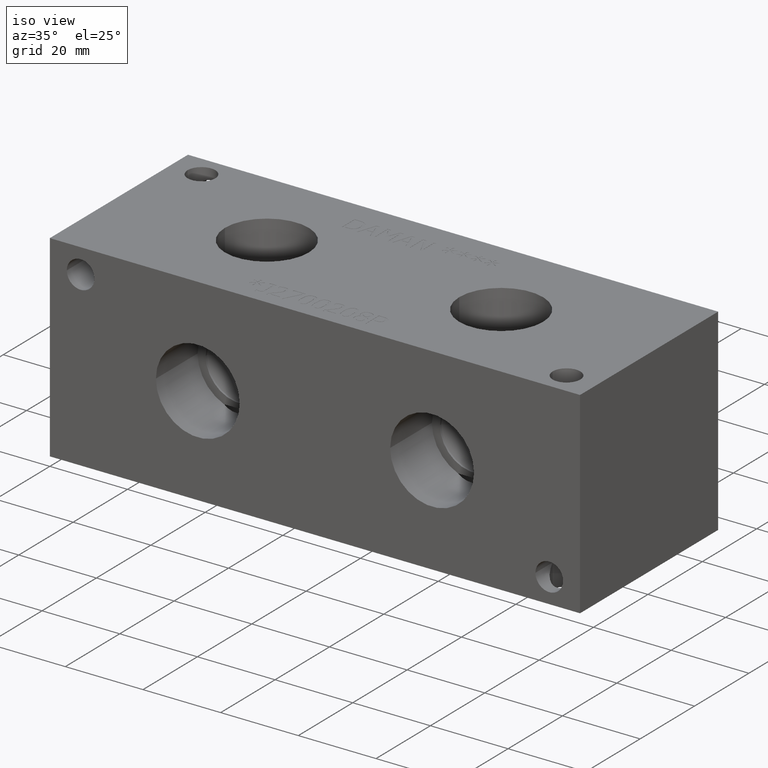
[diagram: clean part render]
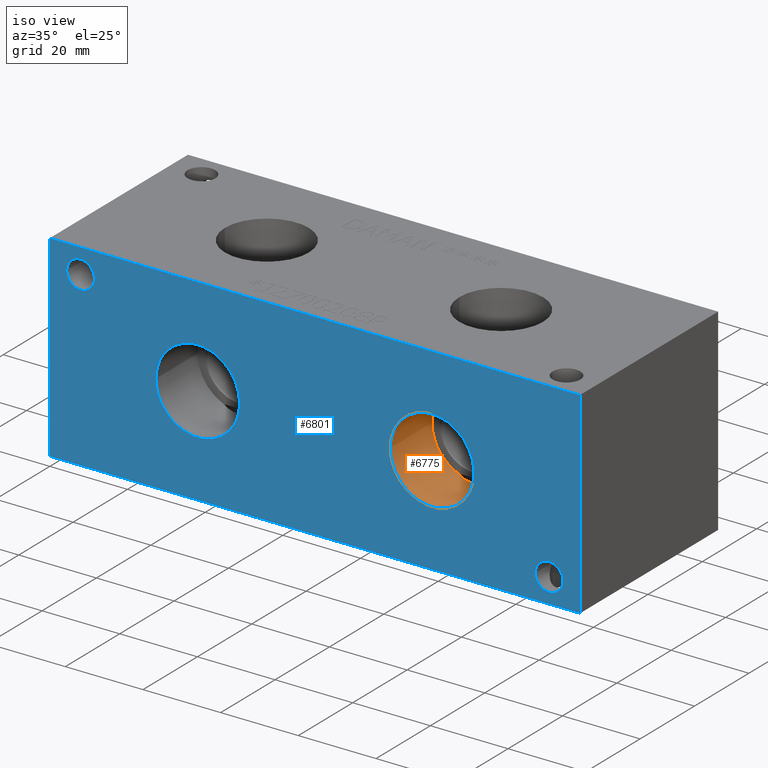
[diagram: same view with the hole feature highlighted: cylindrical wall and planar end face, labeled with their STEP entity ids]
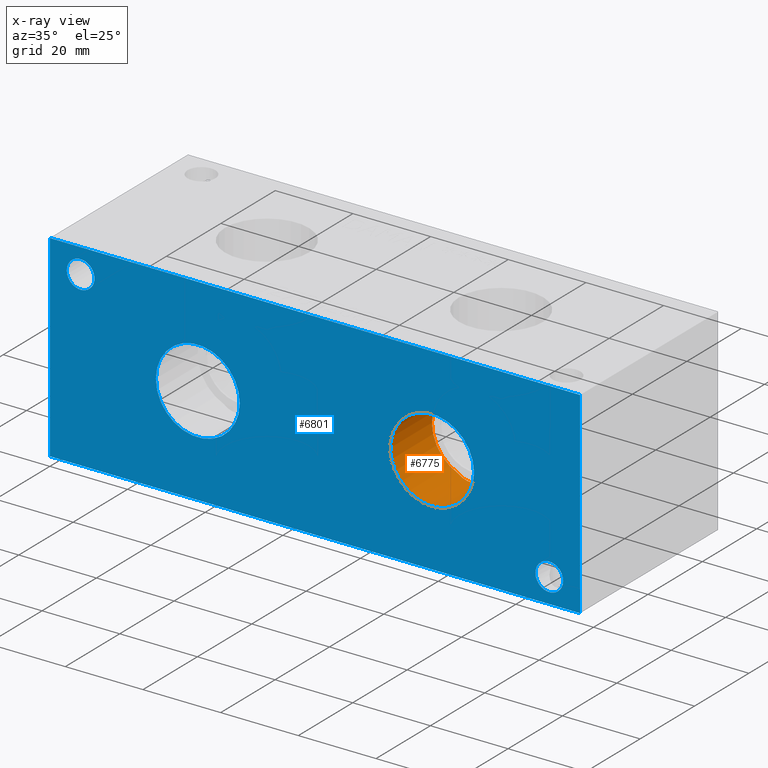
[diagram: x-ray of the same camera — body ghosted, the hole faces saturated]
A machine part, iso view. The highlighted faces form one hole feature of diameter 21.59 mm: the cylindrical wall (entity #6775, orange) and its adjacent planar end face (entity #6801, blue) — they share a circular edge in the B-rep.
The next image is the same camera in x-ray (body ghosted, the hole faces saturated) — the bore reads through the body.
Wall:
#21=ELLIPSE('',#7047,15.2664354058176,10.795);
#23=ELLIPSE('',#7066,15.2664354058176,10.795);
#37=CYLINDRICAL_SURFACE('',#7062,10.795);
#79=CIRCLE('',#7063,10.795);
#80=CIRCLE('',#7064,10.795);
#81=CIRCLE('',#7065,10.795);
#82=CIRCLE('',#7067,10.795);
#83=CIRCLE('',#7068,10.795);
#685=FACE_OUTER_BOUND('',#1060,.T.);
#1060=EDGE_LOOP('',(#5908,#5909,#5910,#5911,#5912,#5913,#5914,#5915,#5916));
#1745=LINE('',#11470,#2416);
#2416=VECTOR('',#8267,10.795);
#3215=VERTEX_POINT('',#11433);
#3216=VERTEX_POINT('',#11435);
#3226=VERTEX_POINT('',#11465);
#3227=VERTEX_POINT('',#11466);
#3228=VERTEX_POINT('',#11469);
#3229=VERTEX_POINT('',#11471);
#3230=VERTEX_POINT('',#11473);
#4118=EDGE_CURVE('',#3216,#3215,#21,.T.);
#4133=EDGE_CURVE('',#3226,#3227,#79,.T.);
#4134=EDGE_CURVE('',#3227,#3226,#80,.T.);
#4135=EDGE_CURVE('',#3227,#3228,#1745,.T.);
#4136=EDGE_CURVE('',#3229,#3228,#81,.T.);
#4137=EDGE_CURVE('',#3230,#3229,#23,.T.);
#4138=EDGE_CURVE('',#3216,#3230,#82,.T.);
#4139=EDGE_CURVE('',#3228,#3215,#83,.T.);
#5908=ORIENTED_EDGE('',*,*,#4133,.F.);
#5909=ORIENTED_EDGE('',*,*,#4134,.F.);
#5910=ORIENTED_EDGE('',*,*,#4135,.T.);
#5911=ORIENTED_EDGE('',*,*,#4136,.F.);
#5912=ORIENTED_EDGE('',*,*,#4137,.F.);
#5913=ORIENTED_EDGE('',*,*,#4138,.F.);
#5914=ORIENTED_EDGE('',*,*,#4118,.T.);
#5915=ORIENTED_EDGE('',*,*,#4139,.F.);
#5916=ORIENTED_EDGE('',*,*,#4135,.F.);
#6775=ADVANCED_FACE('',(#685),#37,.F.);
#7047=AXIS2_PLACEMENT_3D('',#11436,#8227,#8228);
#7062=AXIS2_PLACEMENT_3D('',#11464,#8261,#8262);
#7063=AXIS2_PLACEMENT_3D('',#11467,#8263,#8264);
#7064=AXIS2_PLACEMENT_3D('',#11468,#8265,#8266);
#7065=AXIS2_PLACEMENT_3D('',#11472,#8268,#8269);
#7066=AXIS2_PLACEMENT_3D('',#11474,#8270,#8271);
#7067=AXIS2_PLACEMENT_3D('',#11475,#8272,#8273);
#7068=AXIS2_PLACEMENT_3D('',#11476,#8274,#8275);
#8227=DIRECTION('center_axis',(0.,0.707106781186548,-0.707106781186548));
#8228=DIRECTION('ref_axis',(0.,-0.707106781186547,-0.707106781186547));
#8261=DIRECTION('center_axis',(0.,-1.,0.));
#8262=DIRECTION('ref_axis',(1.,0.,0.));
#8263=DIRECTION('center_axis',(0.,1.,0.));
#8264=DIRECTION('ref_axis',(1.,0.,0.));
#8265=DIRECTION('center_axis',(0.,1.,0.));
#8266=DIRECTION('ref_axis',(1.,0.,0.));
#8267=DIRECTION('',(0.,1.,0.));
#8268=DIRECTION('center_axis',(0.,-1.,0.));
#8269=DIRECTION('ref_axis',(1.,0.,0.));
#8270=DIRECTION('center_axis',(0.,-0.707106781186548,-0.707106781186547));
#8271=DIRECTION('ref_axis',(0.,-0.707106781186547,0.707106781186548));
#8272=DIRECTION('center_axis',(0.,-1.,0.));
#8273=DIRECTION('ref_axis',(1.,0.,0.));
#8274=DIRECTION('center_axis',(0.,-1.,0.));
#8275=DIRECTION('ref_axis',(1.,0.,0.));
#11433=CARTESIAN_POINT('',(94.441165666095,15.367,15.367));
#11435=CARTESIAN_POINT('',(102.408834333905,15.367,15.367));
#11436=CARTESIAN_POINT('Origin',(98.425,25.4,25.4));
#11464=CARTESIAN_POINT('Origin',(98.425,7.6835,25.4));
#11465=CARTESIAN_POINT('',(109.22,0.,25.4));
#11466=CARTESIAN_POINT('',(87.63,0.,25.4));
#11467=CARTESIAN_POINT('Origin',(98.425,0.,25.4));
#11468=CARTESIAN_POINT('Origin',(98.425,0.,25.4));
#11469=CARTESIAN_POINT('',(87.63,15.367,25.4));
#11470=CARTESIAN_POINT('',(87.63,7.6835,25.4));
#11471=CARTESIAN_POINT('',(94.441165666095,15.367,35.433));
#11472=CARTESIAN_POINT('Origin',(98.425,15.367,25.4));
#11473=CARTESIAN_POINT('',(102.408834333905,15.367,35.433));
#11474=CARTESIAN_POINT('Origin',(98.425,25.4,25.4));
#11475=CARTESIAN_POINT('Origin',(98.425,15.367,25.4));
#11476=CARTESIAN_POINT('Origin',(98.425,15.367,25.4));
End face:
#74=CIRCLE('',#7056,10.795);
#75=CIRCLE('',#7057,10.795);
#79=CIRCLE('',#7063,10.795);
#80=CIRCLE('',#7064,10.795);
#84=CIRCLE('',#7070,3.5687);
#85=CIRCLE('',#7071,3.5687);
#87=CIRCLE('',#7079,3.5687);
#88=CIRCLE('',#7080,3.5687);
#148=FACE_BOUND('',#1093,.T.);
#149=FACE_BOUND('',#1094,.T.);
#150=FACE_BOUND('',#1095,.T.);
#151=FACE_BOUND('',#1096,.T.);
#370=PLANE('',#7126);
#711=FACE_OUTER_BOUND('',#1092,.T.);
#1092=EDGE_LOOP('',(#6045,#6046,#6047,#6048));
#1093=EDGE_LOOP('',(#6049,#6050));
#1094=EDGE_LOOP('',(#6051,#6052));
#1095=EDGE_LOOP('',(#6053,#6054));
#1096=EDGE_LOOP('',(#6055,#6056));
#1355=LINE('',#10472,#2026);
#1767=LINE('',#11585,#2438);
#1772=LINE('',#11594,#2443);
#1773=LINE('',#11596,#2444);
#2026=VECTOR('',#7513,10.);
#2438=VECTOR('',#8407,10.);
#2443=VECTOR('',#8416,10.);
#2444=VECTOR('',#8419,10.);
#2929=VERTEX_POINT('',#10470);
#2930=VERTEX_POINT('',#10471);
#3221=VERTEX_POINT('',#11452);
#3222=VERTEX_POINT('',#11453);
#3226=VERTEX_POINT('',#11465);
#3227=VERTEX_POINT('',#11466);
#3231=VERTEX_POINT('',#11478);
#3232=VERTEX_POINT('',#11479);
#3236=VERTEX_POINT('',#11494);
#3237=VERTEX_POINT('',#11495);
#3262=VERTEX_POINT('',#11583);
#3264=VERTEX_POINT('',#11592);
#3697=EDGE_CURVE('',#2929,#2930,#1355,.T.);
#4126=EDGE_CURVE('',#3221,#3222,#74,.T.);
#4127=EDGE_CURVE('',#3222,#3221,#75,.T.);
#4133=EDGE_CURVE('',#3226,#3227,#79,.T.);
#4134=EDGE_CURVE('',#3227,#3226,#80,.T.);
#4140=EDGE_CURVE('',#3231,#3232,#84,.T.);
#4141=EDGE_CURVE('',#3232,#3231,#85,.T.);
#4149=EDGE_CURVE('',#3236,#3237,#87,.T.);
#4150=EDGE_CURVE('',#3237,#3236,#88,.T.);
#4193=EDGE_CURVE('',#3262,#2929,#1767,.T.);
#4198=EDGE_CURVE('',#3264,#2930,#1772,.T.);
#4199=EDGE_CURVE('',#3262,#3264,#1773,.T.);
#6045=ORIENTED_EDGE('',*,*,#4199,.T.);
#6046=ORIENTED_EDGE('',*,*,#4198,.T.);
#6047=ORIENTED_EDGE('',*,*,#3697,.F.);
#6048=ORIENTED_EDGE('',*,*,#4193,.F.);
#6049=ORIENTED_EDGE('',*,*,#4140,.T.);
#6050=ORIENTED_EDGE('',*,*,#4141,.T.);
#6051=ORIENTED_EDGE('',*,*,#4149,.T.);
#6052=ORIENTED_EDGE('',*,*,#4150,.T.);
#6053=ORIENTED_EDGE('',*,*,#4126,.T.);
#6054=ORIENTED_EDGE('',*,*,#4127,.T.);
#6055=ORIENTED_EDGE('',*,*,#4133,.T.);
#6056=ORIENTED_EDGE('',*,*,#4134,.T.);
#6801=ADVANCED_FACE('',(#711,#148,#149,#150,#151),#370,.T.);
#7056=AXIS2_PLACEMENT_3D('',#11454,#8248,#8249);
#7057=AXIS2_PLACEMENT_3D('',#11455,#8250,#8251);
#7063=AXIS2_PLACEMENT_3D('',#11467,#8263,#8264);
#7064=AXIS2_PLACEMENT_3D('',#11468,#8265,#8266);
#7070=AXIS2_PLACEMENT_3D('',#11480,#8278,#8279);
#7071=AXIS2_PLACEMENT_3D('',#11481,#8280,#8281);
#7079=AXIS2_PLACEMENT_3D('',#11496,#8298,#8299);
#7080=AXIS2_PLACEMENT_3D('',#11497,#8300,#8301);
#7126=AXIS2_PLACEMENT_3D('',#11595,#8417,#8418);
#7513=DIRECTION('',(1.,0.,0.));
#8248=DIRECTION('center_axis',(0.,1.,0.));
#8249=DIRECTION('ref_axis',(1.,0.,0.));
#8250=DIRECTION('center_axis',(0.,1.,0.));
#8251=DIRECTION('ref_axis',(1.,0.,0.));
#8263=DIRECTION('center_axis',(0.,1.,0.));
#8264=DIRECTION('ref_axis',(1.,0.,0.));
#8265=DIRECTION('center_axis',(0.,1.,0.));
#8266=DIRECTION('ref_axis',(1.,0.,0.));
#8278=DIRECTION('center_axis',(0.,1.,0.));
#8279=DIRECTION('ref_axis',(1.,0.,0.));
#8280=DIRECTION('center_axis',(0.,1.,0.));
#8281=DIRECTION('ref_axis',(1.,0.,0.));
#8298=DIRECTION('center_axis',(0.,1.,0.));
#8299=DIRECTION('ref_axis',(1.,0.,0.));
#8300=DIRECTION('center_axis',(0.,1.,0.));
#8301=DIRECTION('ref_axis',(1.,0.,0.));
#8407=DIRECTION('',(0.,0.,1.));
#8416=DIRECTION('',(0.,0.,1.));
#8417=DIRECTION('center_axis',(0.,-1.,0.));
#8418=DIRECTION('ref_axis',(1.,0.,0.));
#8419=DIRECTION('',(1.,0.,0.));
#10470=CARTESIAN_POINT('',(0.,0.,50.8));
#10471=CARTESIAN_POINT('',(136.525,0.,50.8));
#10472=CARTESIAN_POINT('',(0.,0.,50.8));
#11452=CARTESIAN_POINT('',(48.895,0.,25.4));
#11453=CARTESIAN_POINT('',(27.305,0.,25.4));
#11454=CARTESIAN_POINT('Origin',(38.1,0.,25.4));
#11455=CARTESIAN_POINT('Origin',(38.1,0.,25.4));
#11465=CARTESIAN_POINT('',(109.22,0.,25.4));
#11466=CARTESIAN_POINT('',(87.63,0.,25.4));
#11467=CARTESIAN_POINT('Origin',(98.425,0.,25.4));
#11468=CARTESIAN_POINT('Origin',(98.425,0.,25.4));
#11478=CARTESIAN_POINT('',(11.4935,0.,44.45));
#11479=CARTESIAN_POINT('',(4.3561,0.,44.45));
#11480=CARTESIAN_POINT('Origin',(7.9248,0.,44.45));
#11481=CARTESIAN_POINT('Origin',(7.9248,0.,44.45));
#11494=CARTESIAN_POINT('',(132.1689,0.,6.35));
#11495=CARTESIAN_POINT('',(125.0315,0.,6.35));
#11496=CARTESIAN_POINT('Origin',(128.6002,0.,6.35));
#11497=CARTESIAN_POINT('Origin',(128.6002,0.,6.35));
#11583=CARTESIAN_POINT('',(0.,0.,0.));
#11585=CARTESIAN_POINT('',(0.,0.,0.));
#11592=CARTESIAN_POINT('',(136.525,0.,0.));
#11594=CARTESIAN_POINT('',(136.525,0.,0.));
#11595=CARTESIAN_POINT('Origin',(0.,0.,0.));
#11596=CARTESIAN_POINT('',(0.,0.,0.));